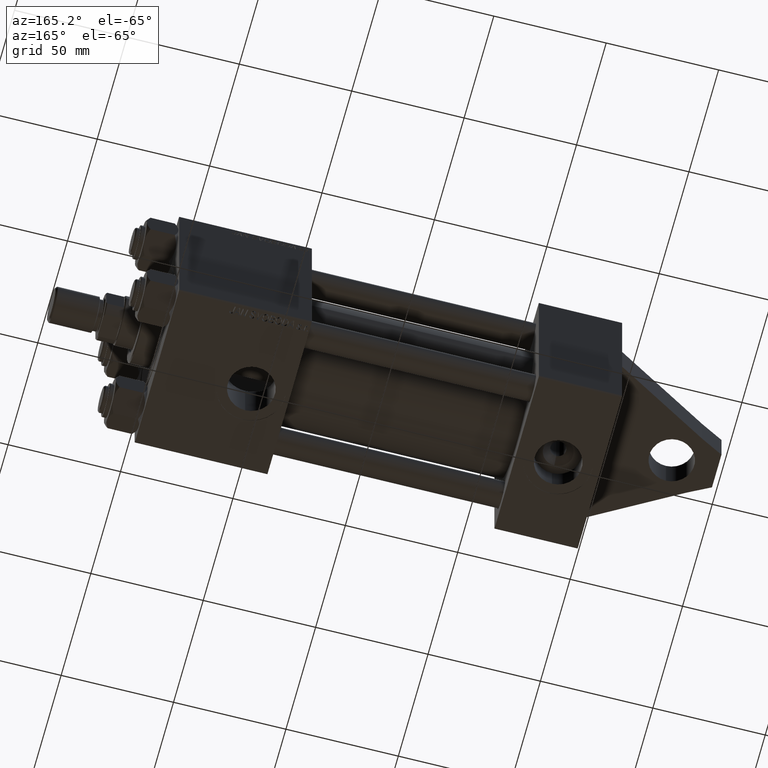
[diagram: clean part render]
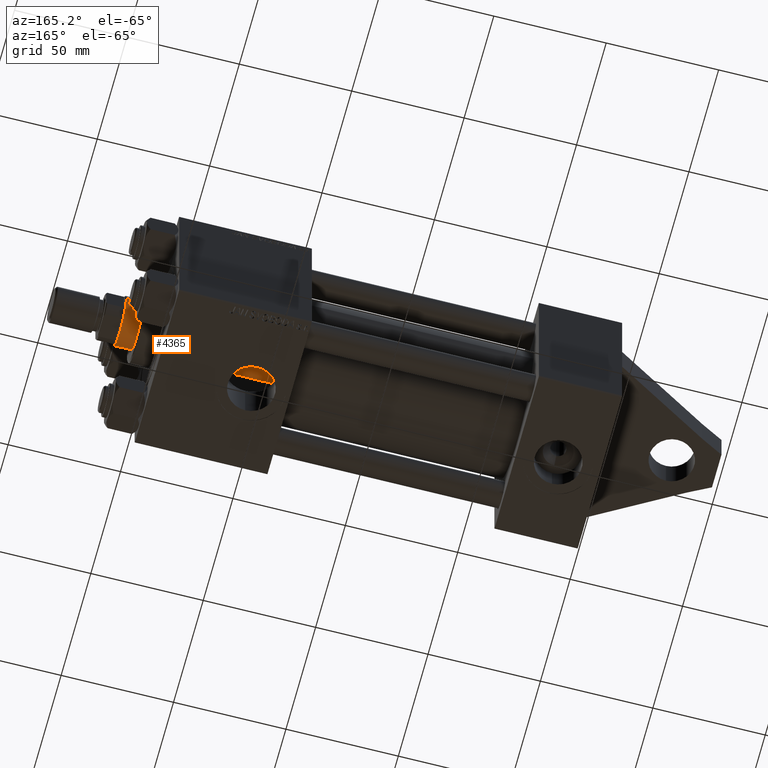
[diagram: same view with one face highlighted and labeled with its STEP entity id]
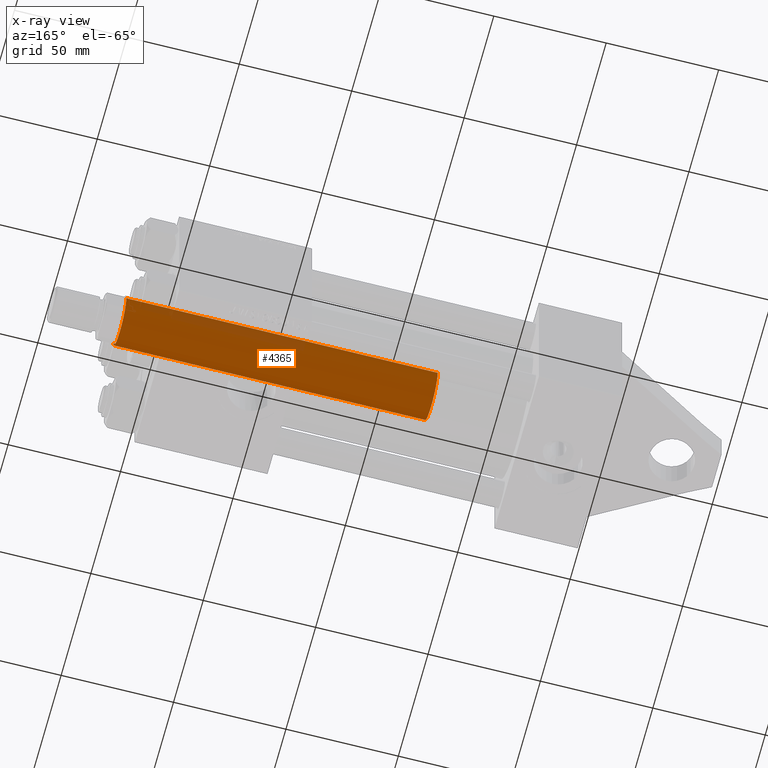
[diagram: x-ray of the same camera — body ghosted, the highlighted face saturated]
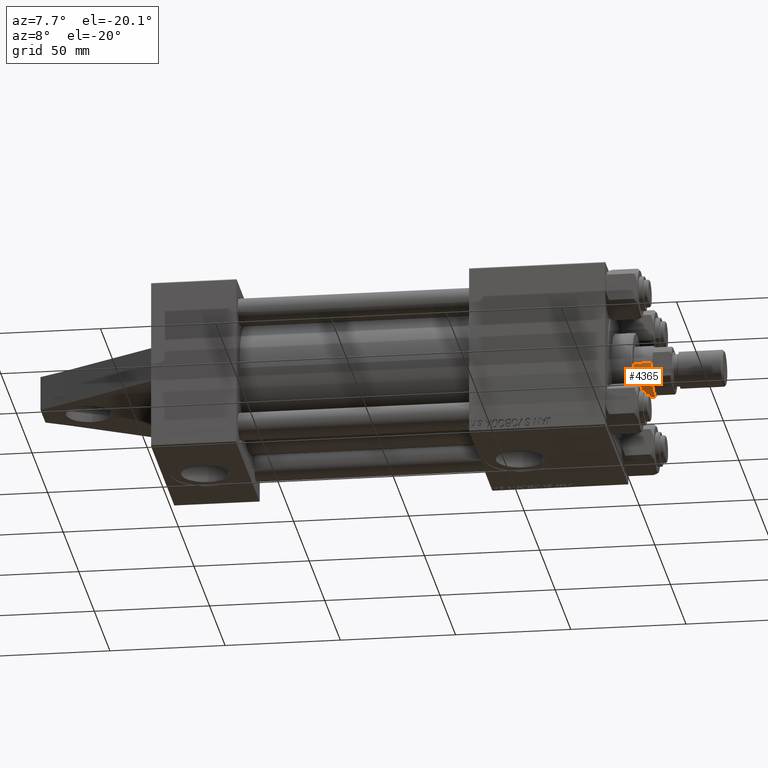
[diagram: same view with one face highlighted and labeled with its STEP entity id]
A machine part, auxiliary view. The second image highlights one B-rep face of the part: STEP entity #4365.
The next image is the same camera in x-ray: the body ghosted, the highlighted face saturated — about 12% of this face is hidden behind the body in this view.
A second angle (auxiliary view) of the same face is appended — the face is thin or edge-on in the first view.
In plain terms, the highlighted cylindrical surface (edge-blend (fillet) strip) has radius 11 mm, axis along (-1, -0, 0).
Its self-contained STEP definition (entity closure, byte-faithful):
#3822 = CARTESIAN_POINT ( 'NONE',  ( -11.00000000000000000, 0.000000000000000000, 38.00000000000000000 ) ) ;
#4365 = ADVANCED_FACE ( 'NONE', ( #24861 ), #25553, .T. ) ;
#5825 = VERTEX_POINT ( 'NONE', #3822 ) ;
#6339 = CARTESIAN_POINT ( 'NONE',  ( 11.00000000000000000, 1.347111479062088405E-15, 38.00000000000000000 ) ) ;
#6592 = VECTOR ( 'NONE', #22952, 1000.000000000000000 ) ;
#6749 = LINE ( 'NONE', #13556, #36681 ) ;
#7458 = CARTESIAN_POINT ( 'NONE',  ( 0.000000000000000000, 0.000000000000000000, 177.0000000000000284 ) ) ;
#8607 = CARTESIAN_POINT ( 'NONE',  ( 11.00000000000000000, 1.347111479062088405E-15, 177.0000000000000284 ) ) ;
#9253 = EDGE_LOOP ( 'NONE', ( #35889, #34608, #36481, #25138 ) ) ;
#10212 = AXIS2_PLACEMENT_3D ( 'NONE', #41000, #44051, #19381 ) ;
#11207 = DIRECTION ( 'NONE',  ( -1.000000000000000000, 0.000000000000000000, 0.000000000000000000 ) ) ;
#13556 = CARTESIAN_POINT ( 'NONE',  ( -11.00000000000000000, 0.000000000000000000, 177.0000000000000284 ) ) ;
#14168 = CARTESIAN_POINT ( 'NONE',  ( 0.000000000000000000, 0.000000000000000000, 38.00000000000000000 ) ) ;
#15775 = EDGE_CURVE ( 'NONE', #42058, #38284, #21479, .T. ) ;
#17412 = CARTESIAN_POINT ( 'NONE',  ( -11.00000000000000000, 0.000000000000000000, 176.5000000000000284 ) ) ;
#19381 = DIRECTION ( 'NONE',  ( 1.000000000000000000, 0.000000000000000000, 0.000000000000000000 ) ) ;
#20541 = EDGE_CURVE ( 'NONE', #42058, #5825, #6749, .T. ) ;
#21479 = CIRCLE ( 'NONE', #10212, 11.00000000000000000 ) ;
#22878 = EDGE_CURVE ( 'NONE', #38284, #28245, #26476, .T. ) ;
#22952 = DIRECTION ( 'NONE',  ( -0.000000000000000000, -0.000000000000000000, -1.000000000000000000 ) ) ;
#24861 = FACE_OUTER_BOUND ( 'NONE', #9253, .T. ) ;
#24887 = CIRCLE ( 'NONE', #32416, 11.00000000000000000 ) ;
#25138 = ORIENTED_EDGE ( 'NONE', *, *, #20541, .F. ) ;
#25553 = CYLINDRICAL_SURFACE ( 'NONE', #40766, 11.00000000000000000 ) ;
#26476 = LINE ( 'NONE', #8607, #6592 ) ;
#27915 = DIRECTION ( 'NONE',  ( -0.000000000000000000, -0.000000000000000000, -1.000000000000000000 ) ) ;
#28245 = VERTEX_POINT ( 'NONE', #6339 ) ;
#28280 = DIRECTION ( 'NONE',  ( 0.000000000000000000, 0.000000000000000000, 1.000000000000000000 ) ) ;
#31919 = DIRECTION ( 'NONE',  ( -0.000000000000000000, -0.000000000000000000, -1.000000000000000000 ) ) ;
#32416 = AXIS2_PLACEMENT_3D ( 'NONE', #14168, #28280, #42382 ) ;
#34608 = ORIENTED_EDGE ( 'NONE', *, *, #22878, .T. ) ;
#35889 = ORIENTED_EDGE ( 'NONE', *, *, #15775, .T. ) ;
#36481 = ORIENTED_EDGE ( 'NONE', *, *, #44645, .T. ) ;
#36681 = VECTOR ( 'NONE', #27915, 1000.000000000000000 ) ;
#38284 = VERTEX_POINT ( 'NONE', #45567 ) ;
#40766 = AXIS2_PLACEMENT_3D ( 'NONE', #7458, #31919, #11207 ) ;
#41000 = CARTESIAN_POINT ( 'NONE',  ( 0.000000000000000000, 0.000000000000000000, 176.5000000000000284 ) ) ;
#42058 = VERTEX_POINT ( 'NONE', #17412 ) ;
#42382 = DIRECTION ( 'NONE',  ( 1.000000000000000000, 0.000000000000000000, 0.000000000000000000 ) ) ;
#44051 = DIRECTION ( 'NONE',  ( 0.000000000000000000, 0.000000000000000000, -1.000000000000000000 ) ) ;
#44645 = EDGE_CURVE ( 'NONE', #28245, #5825, #24887, .T. ) ;
#45567 = CARTESIAN_POINT ( 'NONE',  ( 11.00000000000000000, 1.347111479062088405E-15, 176.5000000000000284 ) ) ;